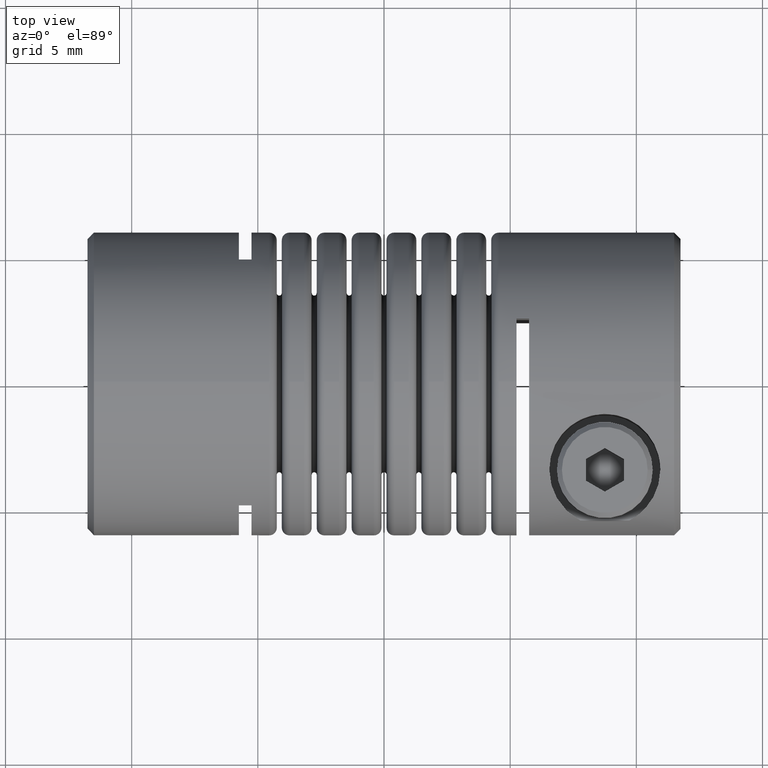
[diagram: clean part render]
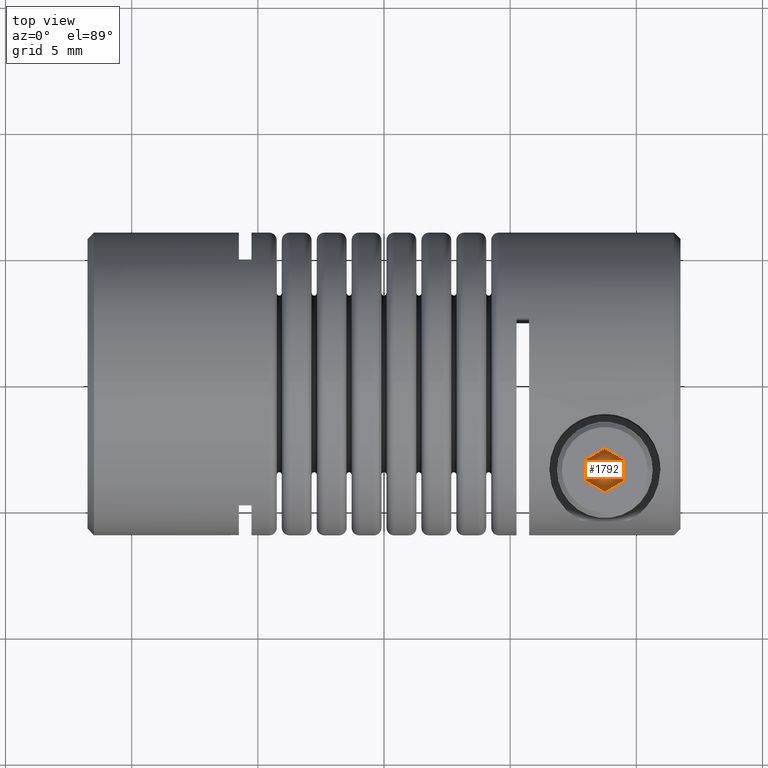
[diagram: same view with one face highlighted and labeled with its STEP entity id]
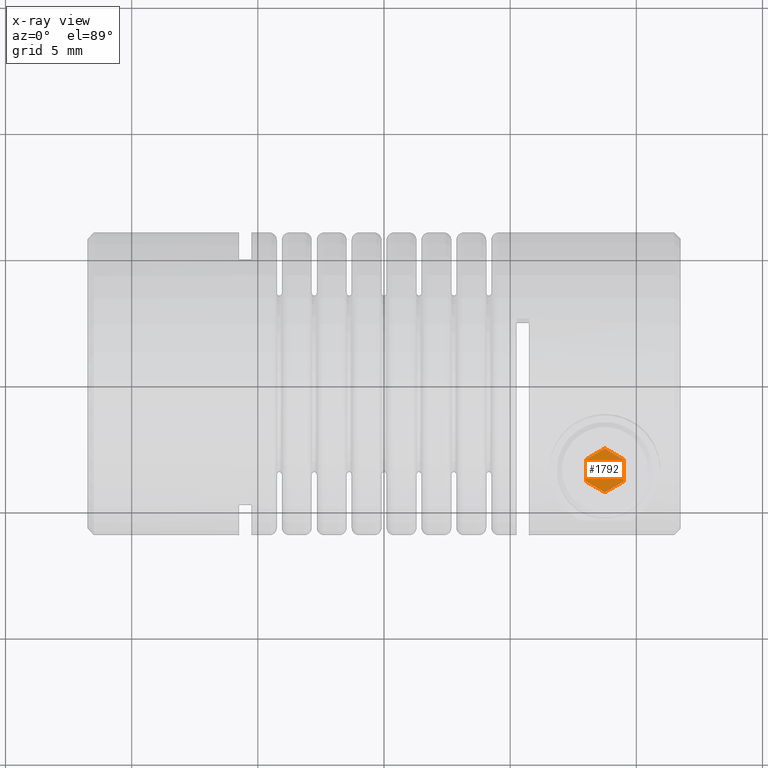
[diagram: x-ray of the same camera — body ghosted, the highlighted face saturated]
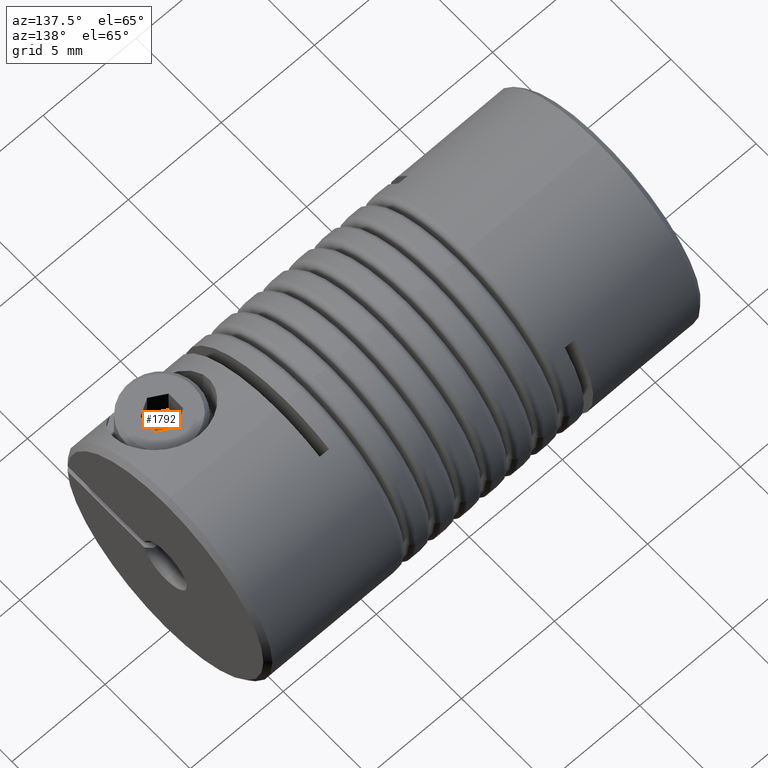
[diagram: same view with one face highlighted and labeled with its STEP entity id]
A machine part, top view. The second image highlights one B-rep face of the part: STEP entity #1792.
The next image is the same camera in x-ray: the body ghosted, the highlighted face saturated — about 0% of this face is hidden behind the body in this view.
A second angle (auxiliary view) of the same face is appended — the face is thin or edge-on in the first view.
In plain terms, the highlighted planar face has unit normal (-0, 0, 1).
Its self-contained STEP definition (entity closure, byte-faithful):
#1017 = ORIENTED_EDGE ( 'NONE', *, *, #1930, .T. ) ;
#1018 = ORIENTED_EDGE ( 'NONE', *, *, #1872, .T. ) ;
#1019 = ORIENTED_EDGE ( 'NONE', *, *, #1871, .T. ) ;
#1020 = ORIENTED_EDGE ( 'NONE', *, *, #1771, .T. ) ;
#1021 = ORIENTED_EDGE ( 'NONE', *, *, #1770, .T. ) ;
#1022 = ORIENTED_EDGE ( 'NONE', *, *, #1769, .T. ) ;
#1099 = EDGE_LOOP ( 'NONE', ( #1017, #1018, #1019, #1020, #1021, #1022 ) ) ;
#1137 = VERTEX_POINT ( 'NONE', #1391 ) ;
#1138 = VERTEX_POINT ( 'NONE', #1392 ) ;
#1139 = VERTEX_POINT ( 'NONE', #1393 ) ;
#1140 = VERTEX_POINT ( 'NONE', #1394 ) ;
#1141 = VERTEX_POINT ( 'NONE', #1395 ) ;
#1142 = VERTEX_POINT ( 'NONE', #1396 ) ;
#1391 = CARTESIAN_POINT ( 'NONE',  ( 8.750000000000003600, -4.347543024130819100, 2.999999999999999100 ) ) ;
#1392 = CARTESIAN_POINT ( 'NONE',  ( 8.000000000000000000, -3.914530322238599900, 2.999999999999999100 ) ) ;
#1393 = CARTESIAN_POINT ( 'NONE',  ( 8.000000000000000000, -3.048504918454159700, 2.999999999999999100 ) ) ;
#1394 = CARTESIAN_POINT ( 'NONE',  ( 8.750000000000000000, -2.615492216561940500, 2.999999999999999100 ) ) ;
#1395 = CARTESIAN_POINT ( 'NONE',  ( 9.500000000000003600, -3.048504918454161500, 2.999999999999999100 ) ) ;
#1396 = CARTESIAN_POINT ( 'NONE',  ( 9.500000000000003600, -3.914530322238599900, 2.999999999999999100 ) ) ;
#1769 = EDGE_CURVE ( 'NONE', #1139, #1138, #3354, .T. ) ;
#1770 = EDGE_CURVE ( 'NONE', #1140, #1139, #3405, .T. ) ;
#1771 = EDGE_CURVE ( 'NONE', #1141, #1140, #3412, .T. ) ;
#1792 = ADVANCED_FACE ( 'NONE', ( #3444 ), #3694, .T. ) ;
#1871 = EDGE_CURVE ( 'NONE', #1142, #1141, #4197, .T. ) ;
#1872 = EDGE_CURVE ( 'NONE', #1137, #1142, #4205, .T. ) ;
#1930 = EDGE_CURVE ( 'NONE', #1138, #1137, #4292, .T. ) ;
#2624 = AXIS2_PLACEMENT_3D ( 'NONE', #3689, #3699, #3700 ) ;
#3354 = LINE ( 'NONE', #3619, #3408 ) ;
#3405 = LINE ( 'NONE', #3621, #3410 ) ;
#3408 = VECTOR ( 'NONE', #3623, 1000.000000000000000 ) ;
#3410 = VECTOR ( 'NONE', #3625, 1000.000000000000100 ) ;
#3412 = LINE ( 'NONE', #3626, #3413 ) ;
#3413 = VECTOR ( 'NONE', #3627, 1000.000000000000100 ) ;
#3444 = FACE_OUTER_BOUND ( 'NONE', #1099, .T. ) ;
#3619 = CARTESIAN_POINT ( 'NONE',  ( 8.000000000000000000, -3.048504918454159700, 2.999999999999999100 ) ) ;
#3621 = CARTESIAN_POINT ( 'NONE',  ( 8.750000000000000000, -2.615492216561940500, 2.999999999999999100 ) ) ;
#3623 = DIRECTION ( 'NONE',  ( 0.0000000000000000000, -1.000000000000000000, 0.0000000000000000000 ) ) ;
#3625 = DIRECTION ( 'NONE',  ( -0.8660254037844388200, -0.4999999999999996100, 0.0000000000000000000 ) ) ;
#3626 = CARTESIAN_POINT ( 'NONE',  ( 9.500000000000003600, -3.048504918454161500, 2.999999999999999100 ) ) ;
#3627 = DIRECTION ( 'NONE',  ( -0.8660254037844384900, 0.5000000000000003300, 0.0000000000000000000 ) ) ;
#3689 = CARTESIAN_POINT ( 'NONE',  ( 8.750000000000003600, -4.347543024130819100, 2.999999999999999100 ) ) ;
#3694 = PLANE ( 'NONE',  #2624 ) ;
#3699 = DIRECTION ( 'NONE',  ( -0.0000000000000000000, 0.0000000000000000000, 1.000000000000000000 ) ) ;
#3700 = DIRECTION ( 'NONE',  ( 1.000000000000000000, 0.0000000000000000000, 0.0000000000000000000 ) ) ;
#3943 = CARTESIAN_POINT ( 'NONE',  ( 9.500000000000003600, -3.914530322238599900, 2.999999999999999100 ) ) ;
#3944 = DIRECTION ( 'NONE',  ( 0.0000000000000000000, 1.000000000000000000, 0.0000000000000000000 ) ) ;
#3945 = CARTESIAN_POINT ( 'NONE',  ( 8.750000000000003600, -4.347543024130819100, 2.999999999999999100 ) ) ;
#3946 = DIRECTION ( 'NONE',  ( 0.8660254037844381500, 0.5000000000000008900, 0.0000000000000000000 ) ) ;
#4085 = CARTESIAN_POINT ( 'NONE',  ( 8.000000000000000000, -3.914530322238599900, 2.999999999999999100 ) ) ;
#4197 = LINE ( 'NONE', #3943, #4200 ) ;
#4200 = VECTOR ( 'NONE', #3944, 1000.000000000000000 ) ;
#4205 = LINE ( 'NONE', #3945, #4206 ) ;
#4206 = VECTOR ( 'NONE', #3946, 1000.000000000000000 ) ;
#4263 = VECTOR ( 'NONE', #4381, 1000.000000000000100 ) ;
#4292 = LINE ( 'NONE', #4085, #4263 ) ;
#4381 = DIRECTION ( 'NONE',  ( 0.8660254037844396000, -0.4999999999999982200, 0.0000000000000000000 ) ) ;